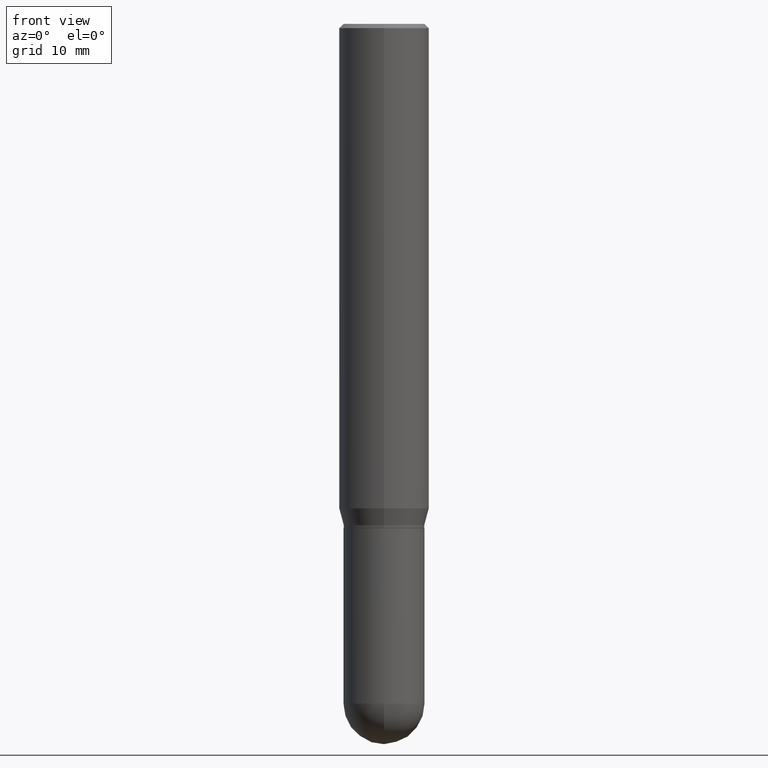
[diagram: clean part render]
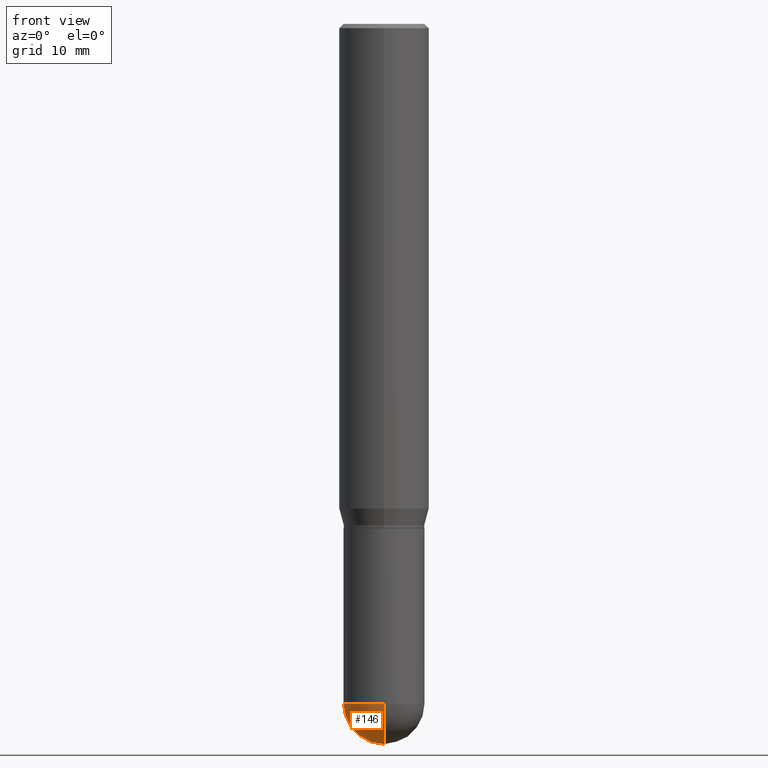
[diagram: same view with one face highlighted and labeled with its STEP entity id]
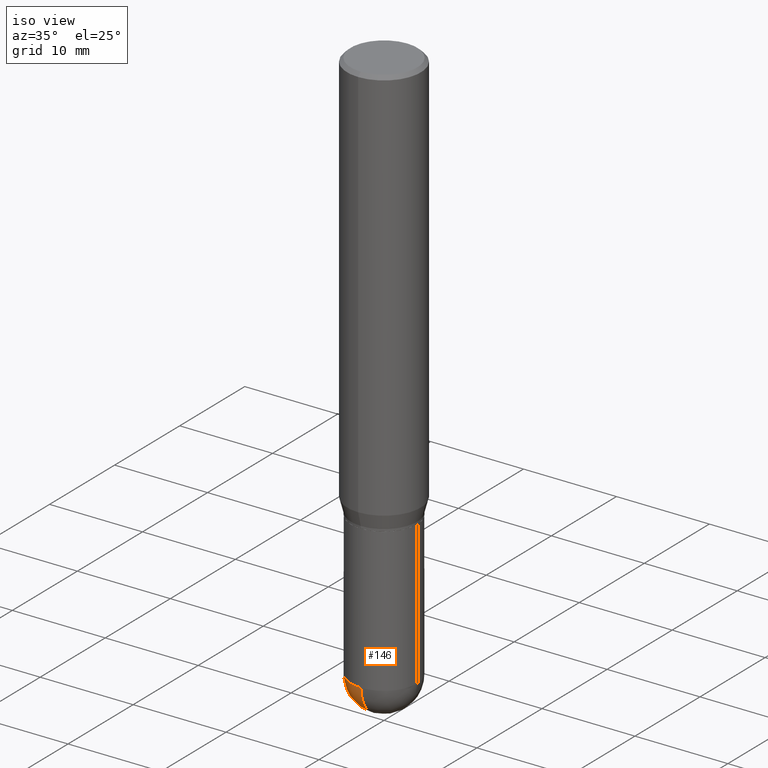
[diagram: same view with one face highlighted and labeled with its STEP entity id]
A machine part, front view. The second image highlights one B-rep face of the part: STEP entity #146.
A second angle (iso view) of the same face is appended — the face is thin or edge-on in the first view.
In plain terms, the highlighted spherical surface has radius 3.5712 mm.
Its self-contained STEP definition (entity closure, byte-faithful):
#13 = VERTEX_POINT ( 'NONE', #300 ) ;
#17 = ORIENTED_EDGE ( 'NONE', *, *, #200, .F. ) ;
#37 = VERTEX_POINT ( 'NONE', #360 ) ;
#44 = EDGE_LOOP ( 'NONE', ( #218, #253, #17, #180 ) ) ;
#59 = AXIS2_PLACEMENT_3D ( 'NONE', #423, #80, #355 ) ;
#80 = DIRECTION ( 'NONE',  ( -2.445468806185136597E-29, 3.491481338843145583E-15, 1.000000000000000000 ) ) ;
#87 = DIRECTION ( 'NONE',  ( -7.105427357601001859E-15, -1.000000000000000000, 0.000000000000000000 ) ) ;
#109 = DIRECTION ( 'NONE',  ( 6.982962677686266711E-15, 1.000000000000000000, 0.000000000000000000 ) ) ;
#113 = SPHERICAL_SURFACE ( 'NONE', #286, 0.1406000000000000860 ) ;
#146 = ADVANCED_FACE ( 'NONE', ( #189 ), #113, .T. ) ;
#154 = CARTESIAN_POINT ( 'NONE',  ( -9.990230864786434913E-16, -0.1406000000000083017, -2.359399999999999498 ) ) ;
#180 = ORIENTED_EDGE ( 'NONE', *, *, #494, .F. ) ;
#189 = FACE_OUTER_BOUND ( 'NONE', #44, .T. ) ;
#193 = EDGE_CURVE ( 'NONE', #37, #296, #481, .T. ) ;
#194 = CARTESIAN_POINT ( 'NONE',  ( 9.818045524827470871E-16, 0.1405999999999918426, -2.359400000000000386 ) ) ;
#195 = CARTESIAN_POINT ( 'NONE',  ( 5.757815463287349061E-29, -8.255019604862529009E-15, -2.359399999999999942 ) ) ;
#200 = EDGE_CURVE ( 'NONE', #13, #276, #447, .T. ) ;
#218 = ORIENTED_EDGE ( 'NONE', *, *, #193, .F. ) ;
#253 = ORIENTED_EDGE ( 'NONE', *, *, #474, .T. ) ;
#254 = DIRECTION ( 'NONE',  ( 1.000000000000000000, -6.982962677686270655E-15, 0.000000000000000000 ) ) ;
#276 = VERTEX_POINT ( 'NONE', #154 ) ;
#286 = AXIS2_PLACEMENT_3D ( 'NONE', #195, #386, #512 ) ;
#294 = CARTESIAN_POINT ( 'NONE',  ( 5.769839101313211634E-29, -8.237801070866517629E-15, -2.359399999999999942 ) ) ;
#296 = VERTEX_POINT ( 'NONE', #194 ) ;
#300 = CARTESIAN_POINT ( 'NONE',  ( -0.1406000000000000583, -6.174923620442310269E-15, -2.359399999999999942 ) ) ;
#312 = DIRECTION ( 'NONE',  ( 1.000000000000000000, -6.982962677686265922E-15, 4.883557194083112340E-29 ) ) ;
#355 = DIRECTION ( 'NONE',  ( 1.000000000000000000, -6.982962677686270655E-15, 0.000000000000000000 ) ) ;
#358 = AXIS2_PLACEMENT_3D ( 'NONE', #404, #439, #87 ) ;
#360 = CARTESIAN_POINT ( 'NONE',  ( 6.107660196449910766E-29, -8.737312614105869844E-15, -2.500000000000000000 ) ) ;
#369 = DIRECTION ( 'NONE',  ( -2.445468806185136597E-29, 3.491481338843145583E-15, 1.000000000000000000 ) ) ;
#377 = CIRCLE ( 'NONE', #409, 0.1406000000000000305 ) ;
#386 = DIRECTION ( 'NONE',  ( -1.000000000000000000, 6.982962677686265922E-15, -4.883557194083112340E-29 ) ) ;
#399 = CIRCLE ( 'NONE', #358, 0.1406000000000000860 ) ;
#404 = CARTESIAN_POINT ( 'NONE',  ( 5.757815463287349061E-29, -8.255019604862529009E-15, -2.359399999999999942 ) ) ;
#409 = AXIS2_PLACEMENT_3D ( 'NONE', #294, #369, #254 ) ;
#423 = CARTESIAN_POINT ( 'NONE',  ( 5.769839101313211634E-29, -8.237801070866517629E-15, -2.359399999999999942 ) ) ;
#439 = DIRECTION ( 'NONE',  ( -1.000000000000000000, 7.105427357601001070E-15, -4.926315508542082329E-29 ) ) ;
#447 = CIRCLE ( 'NONE', #59, 0.1406000000000000305 ) ;
#468 = AXIS2_PLACEMENT_3D ( 'NONE', #473, #312, #109 ) ;
#473 = CARTESIAN_POINT ( 'NONE',  ( 5.757815463287349061E-29, -8.255019604862529009E-15, -2.359399999999999942 ) ) ;
#474 = EDGE_CURVE ( 'NONE', #37, #276, #399, .T. ) ;
#481 = CIRCLE ( 'NONE', #468, 0.1406000000000000860 ) ;
#494 = EDGE_CURVE ( 'NONE', #296, #13, #377, .T. ) ;
#512 = DIRECTION ( 'NONE',  ( 6.982962677686265922E-15, 1.000000000000000000, -3.885985766236502230E-15 ) ) ;